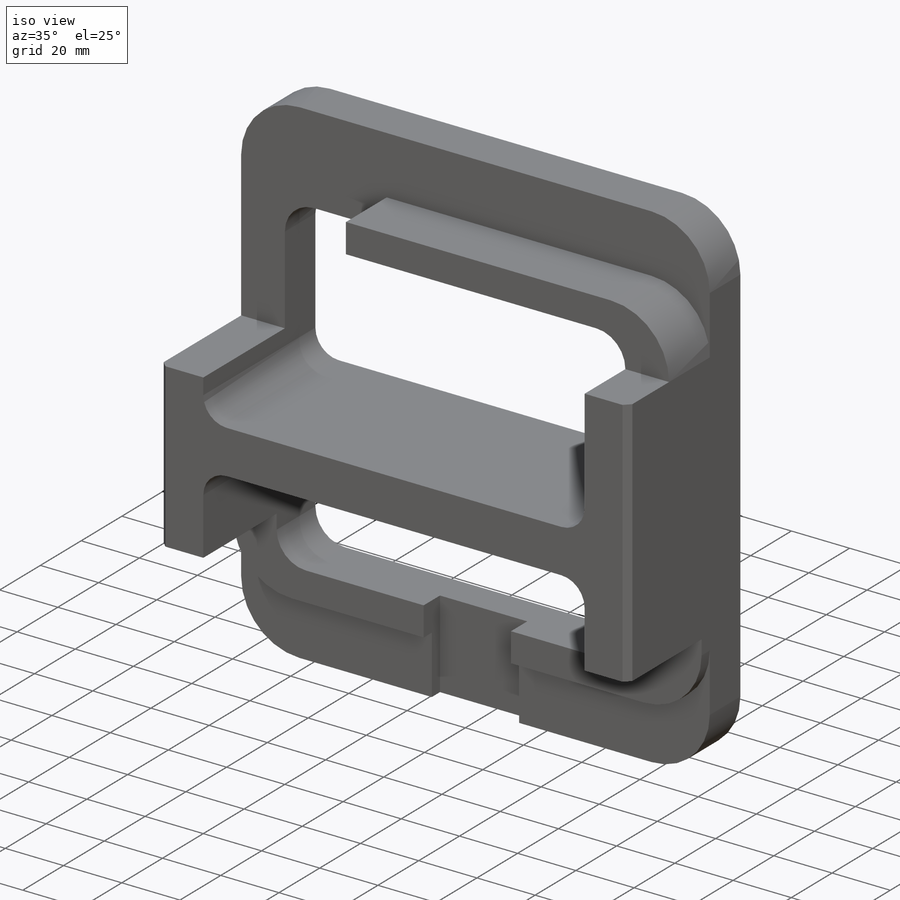
[diagram: iso view]
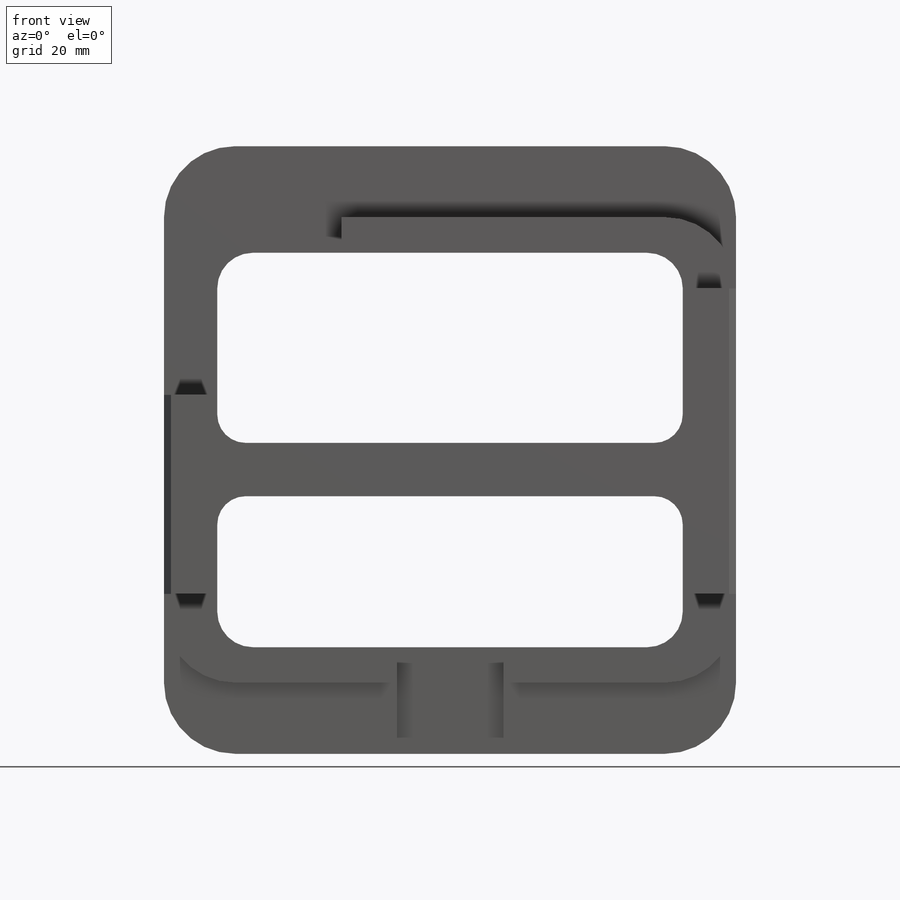
[diagram: front view]
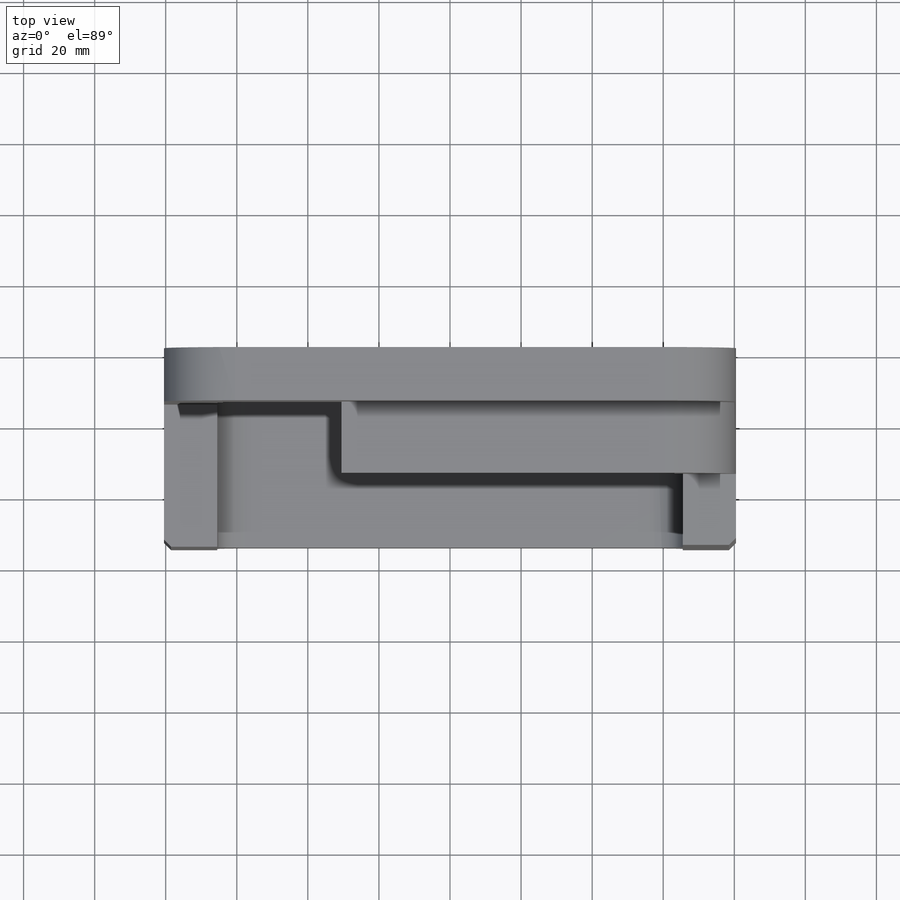
[diagram: top view]
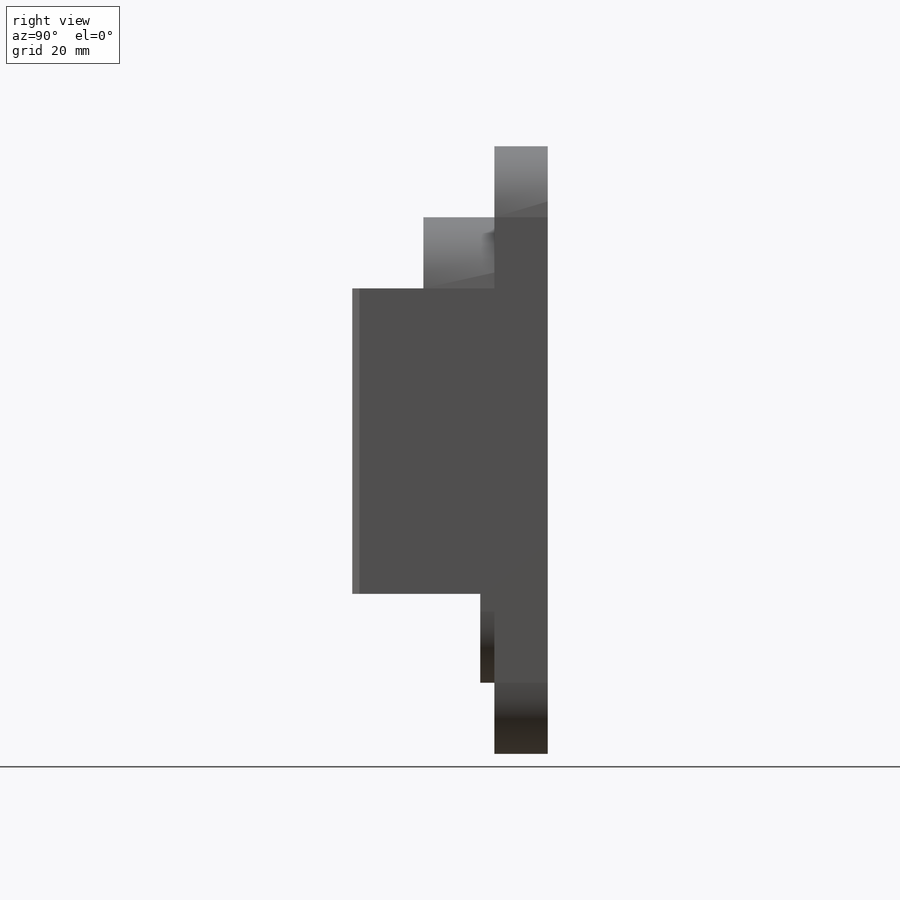
[diagram: right view]
SOLIDWORKS PART (.sldprt)
format: sldprt  version: not decoded by parser v0  size: 305,152 bytes
history: native  units: mm
features: sketch x7, cut_extrude x4, extrude x3, material x1, fillet x1, chamfer x1 (+11 scaffold rows collapsed)
feature tree (28):
  scaffold x11  (default folders/planes/origin — collapsed)
  material  "Material <not specified>"
  sketch  "Sketch1"  dims[D5=20.0mm D6=10.0mm D1=161.0mm D2=131.0mm D3=10.0mm D4=15.0mm D7=10.0mm D8=15.0mm]
  extrude  "Boss-Extrude1"  Depth=55mm
  sketch  "Sketch3"  dims[D3=20.0mm D1=20.0mm D2=20.0mm]
  extrude  "Boss-Extrude3"  Depth=15mm
  sketch  "Sketch4"  dims[D1=25.0mm]
  cut_extrude  "Cut-Extrude1"  Depth=4mm
  sketch  "Sketch5"  dims[D1=15.0mm D2=30.0mm]
  cut_extrude  "Cut-Extrude2"  Depth=8mm
  sketch  "Sketch6"  dims[D1=50.0mm D2=50.0mm]
  cut_extrude  "Cut-Extrude3"  [1 undecoded]
  sketch  "Sketch7"
  cut_extrude  "Cut-Extrude4"  Depth=20mm
  sketch  "Sketch8"  dims[D1=2.0mm D2=15.0mm]
  extrude  "Boss-Extrude4"  [1 undecoded]
  fillet  "Fillet1"  Radius=8mm
  chamfer  "Chamfer1"  Distance=2mm Angle=45deg
decode coverage: 13 of 16 modeling features carry decoded parameters
note: 2 parameter values undecoded
note: suppression state not decoded; provenance and decode notes live in map.json
